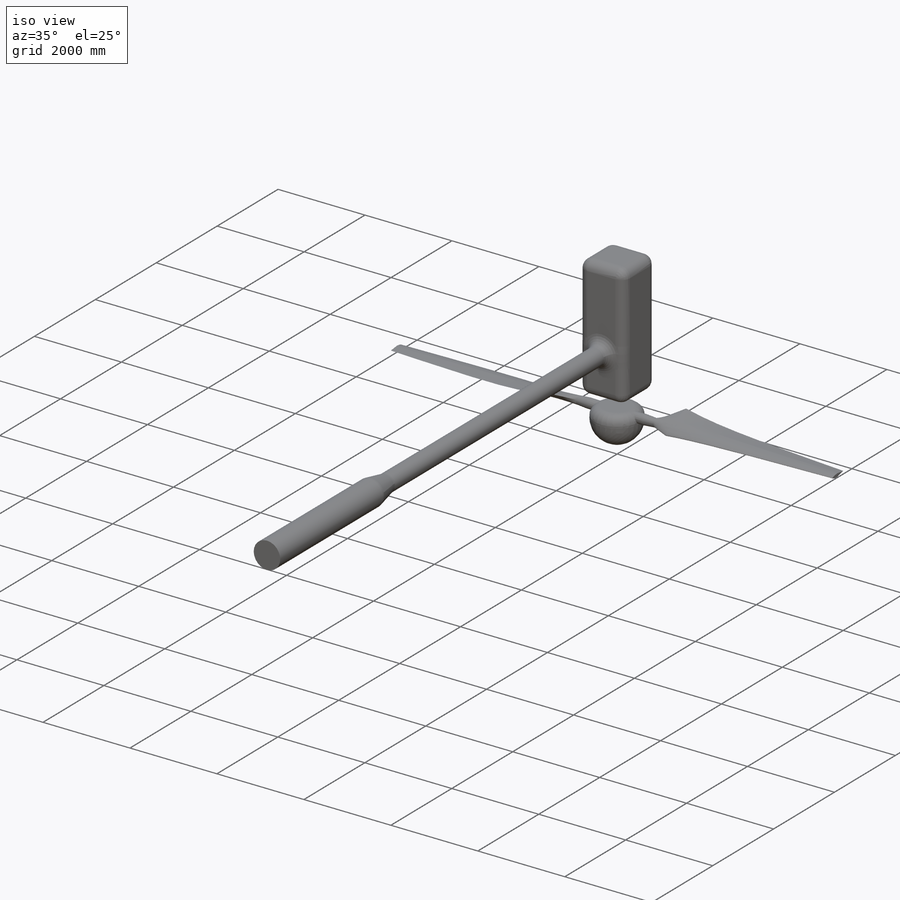
[diagram: iso view]
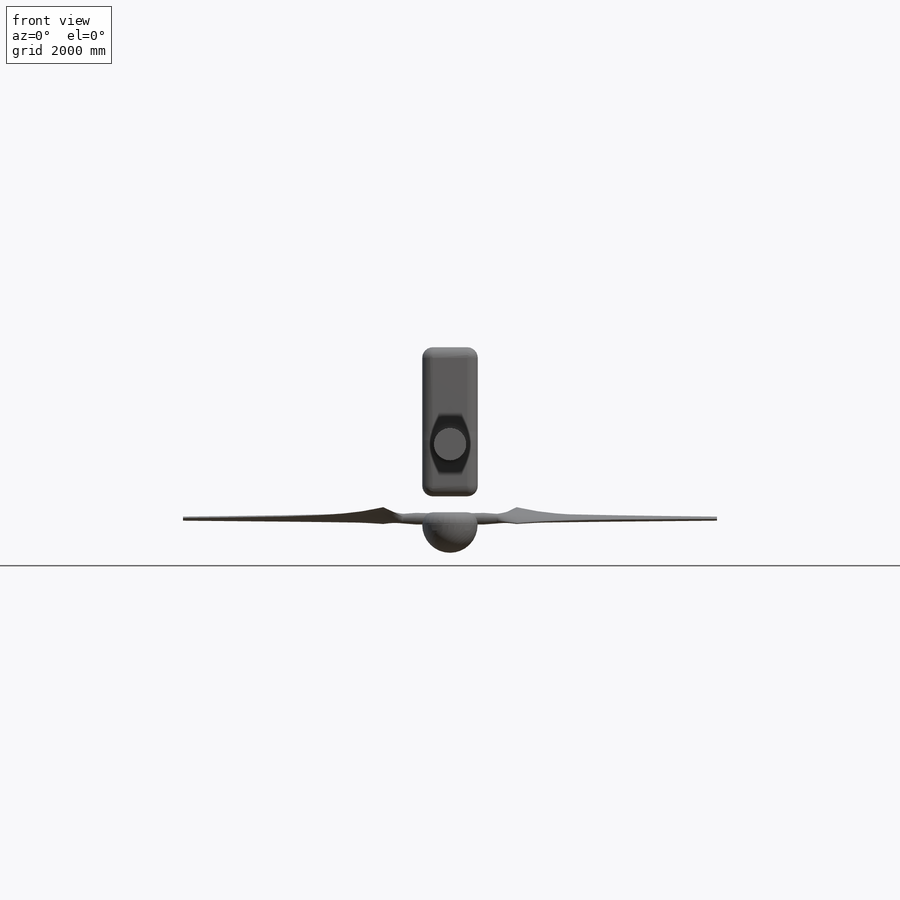
[diagram: front view]
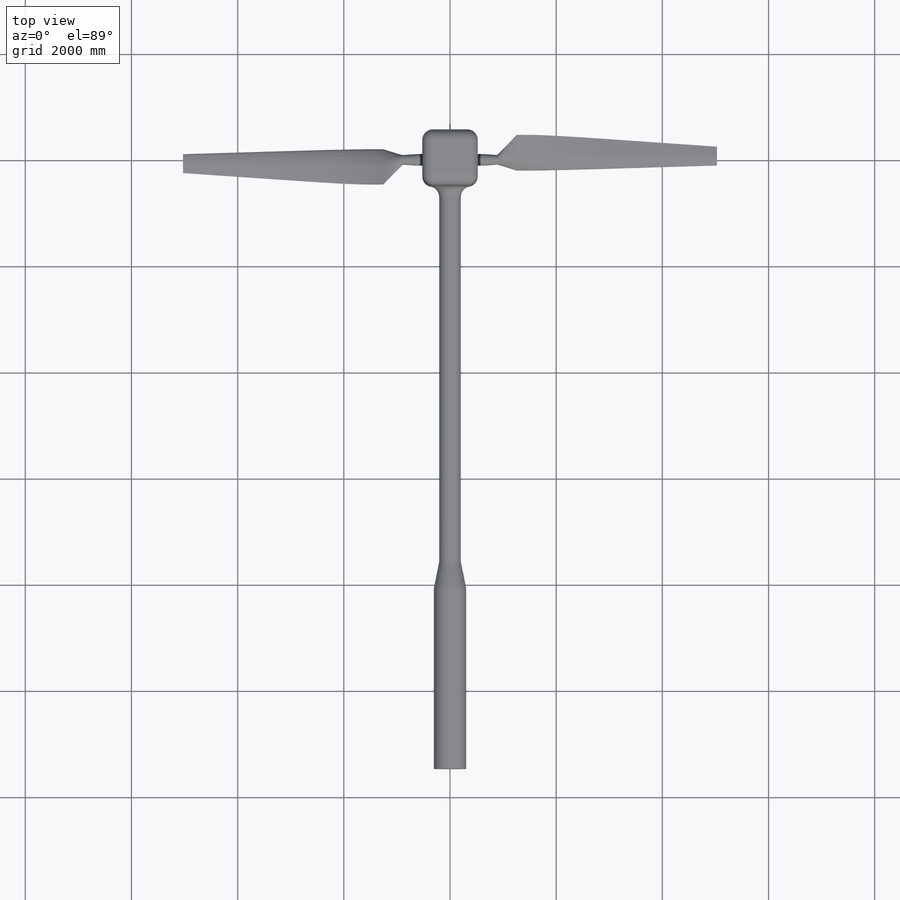
[diagram: top view]
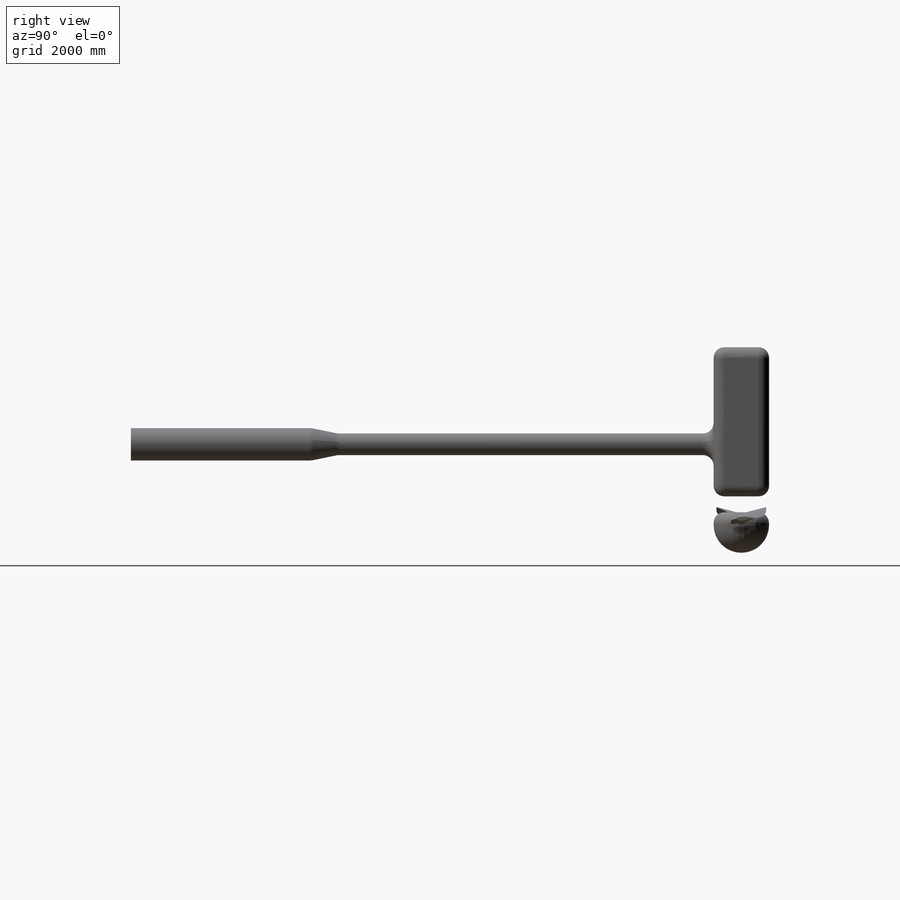
[diagram: right view]
SOLIDWORKS PART (.sldprt)
format: sldprt  version: not decoded by parser v0  size: 1,229,824 bytes
history: native  units: mm
features: sketch x38, plane x29, extrude x4, move_body x3, fillet x3, material x1, pattern_circular x1, revolve x1 (+8 scaffold rows collapsed)
feature tree (88):
  scaffold x8  (default folders/planes/origin — collapsed)
  material  "Material <not specified>"
  plane  "Plano frontal"
  plane  "Plano superior"
  plane  "Plano direito"
  plane  "First Section_Cylinder"  Offset=508mm
  sketch  "Sketch2"  dims[D1=218.0mm]
  plane  "Second Section_Cylinder"  Offset=883mm
  sketch  "Sketch3"  dims[D1=183.0mm]
  plane  "Third Section_S809"  Offset=1257mm
  sketch  "Sketch4"
  plane  "Fourth Section_S809"  Offset=1343mm
  sketch  "Sketch5"  dims[D1=0.0mm]
  plane  "Fifth Section_S809"  Offset=1510mm
  sketch  "Sketch6"  dims[D1=0.0mm]
  plane  "Sixth Section_S809"  Offset=1648mm
  sketch  "Sketch7"  dims[D1=0.0mm]
  plane  "Seventh Section_S809"  Offset=1952mm
  sketch  "Sketch8"  dims[D1=0.0mm]
  plane  "Eighth Section_S809"  Offset=2257mm
  sketch  "Sketch9"  dims[D1=0.0mm]
  plane  "Ninth Section_S809"  Offset=2343mm
  sketch  "Sketch10"  dims[D1=0.0mm]
  plane  "Tenth Section_S809"  Offset=2562mm
  sketch  "Sketch11"  dims[D1=0.0mm]
  plane  "Eleventh Section_S809"  Offset=2867mm
  sketch  "Sketch12"  dims[D1=0.0mm]
  plane  "Twelfth Section_S809"  Offset=3172mm
  sketch  "Sketch13"  dims[D1=0.0mm]
  plane  "Thirteenth Section-S809"  Offset=3185mm
  sketch  "Sketch14"  dims[D1=0.0mm]
  plane  "Fourteenth Section_S809"  Offset=3476mm
  sketch  "Sketch15"  dims[D1=0.0mm]
  plane  "Fifteenth Section_S809"  Offset=3781mm
  sketch  "Sketch16"  dims[D1=0.0mm]
  plane  "Sixteenth Section_S809"  Offset=4023mm
  sketch  "Sketch17"  dims[D1=0.0mm]
  plane  "Seventeenth Section_S809"  Offset=4086mm
  sketch  "Sketch18"  dims[D1=0.0mm]
  plane  "Eighteenth_S809"  Offset=4391mm
  sketch  "Sketch19"  dims[D1=0.0mm]
  plane  "Nineteenth_S809"  Offset=4696mm
  sketch  "Sketch20"  dims[D1=0.0mm]
  plane  "Twenieth_S809"  Offset=4780mm
  sketch  "Sketch21"  dims[D1=0.0mm]
  plane  "21th_S809"  Offset=5000mm
  sketch  "Sketch22"  dims[D1=0.0mm]
  plane  "22nd_S809"  Offset=5029mm
  sketch  "Sketch23"  dims[c1.D1=~3.727266mm c2.D1=2.0deg c3.D1=~3.727266mm c4.D1=2.0deg c5.D1=~3.382615mm c6.D1=1.815deg c7.D1=~3.382615mm c8.D1=1.815deg c9.D1=0.0mm]
  plane  "Second Section 2"  Offset=152mm
  sketch  "Cylinder"  dims[D1=218.0mm]
  sketch  "Sketch3<3>"
  sketch  "Center of Rotation"
  plane  "Twenieth2_S809"  Offset=158mm
  sketch  "Sketch27"  dims[D1=0.0mm]
  sketch  "Sketch5<5>"
  sketch  "Sketch4<8>"
  sketch  "Left_Blade_Pitch_Axis"
  pattern_circular  "CirPattern1"  Count=2 Angle=180deg
  sketch  "Right_Blade_Pitch_Axis"
  move_body  "Body-Move/Copy2"
  move_body  "Body-Move/Copy4"
  sketch  "Sketch38"  dims[D1=1046.0mm]
  extrude  "Boss-Extrude1"  Depth=120mm
  plane  "Nacelle_Plane"  Offset=300mm
  sketch  "Sketch44"  dims[D1=1046.0mm D2=1046.0mm]
  extrude  "Boss-Extrude2"  Depth=2810mm
  move_body  "Body-Move/Copy1"
  sketch  "Sketch45"  dims[D2=1046.0mm D1=120.0mm]
  revolve  "Revolve3"  Angle=360deg
  sketch  "Sketch46"  dims[D1=406.4mm D2=1401.0mm]
  extrude  "Boss-Extrude3"  Depth=7600mm
  sketch  "Sketch47"
  plane  "Plane3"  Offset=8100mm
  sketch  "Sketch48"  dims[D1=609.6mm]
  sketch  "Sketch49"
  extrude  "Boss-Extrude4"  Depth=3400mm
  fillet  "Fillet1"  Radius=200mm
  fillet  "Fillet2"  Radius=200mm
  fillet  "Fillet3"  Radius=200mm
  sketch  "Pitch_Axis"
decode coverage: 37 of 50 modeling features carry decoded parameters
note: ~ marks probable driven/reference dimensions
note: suppression state not decoded; provenance and decode notes live in map.json
